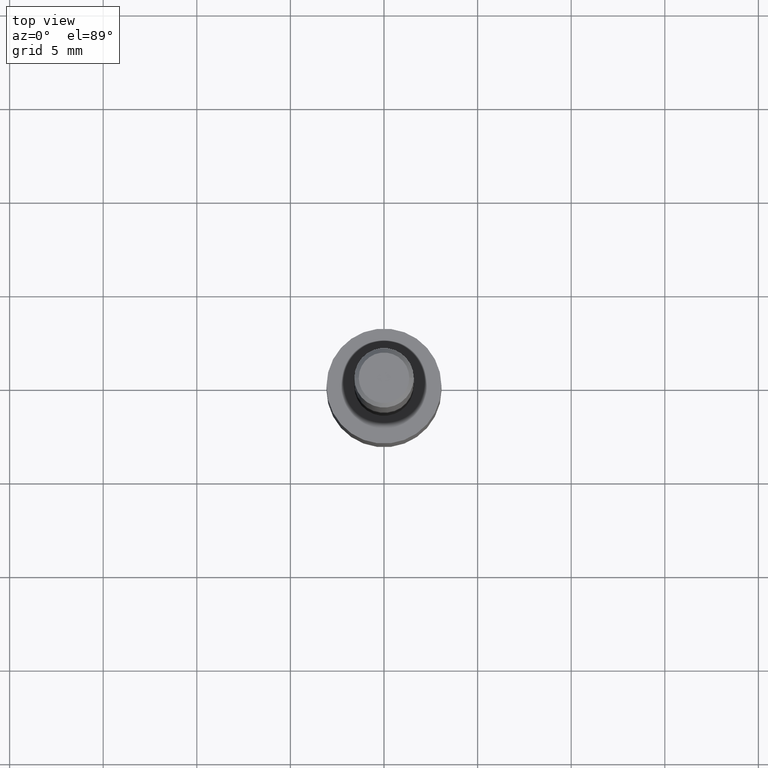
[diagram: clean part render]
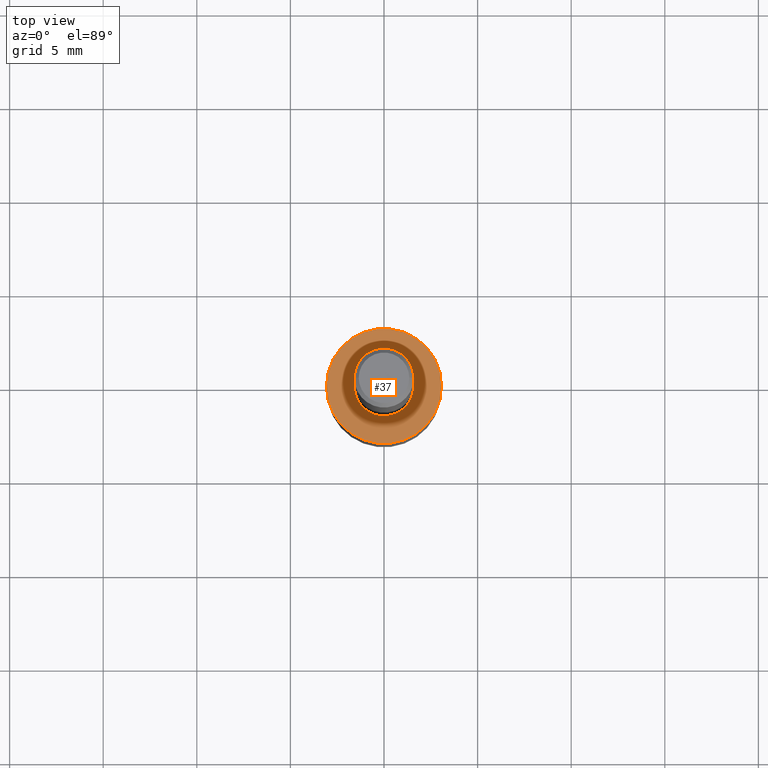
[diagram: same view with one face highlighted and labeled with its STEP entity id]
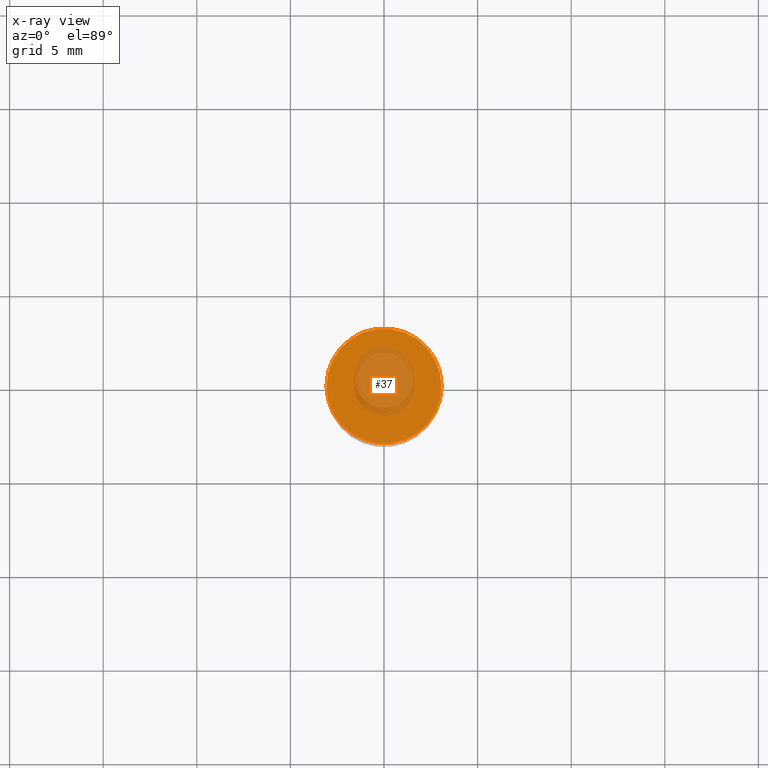
[diagram: x-ray of the same camera — body ghosted, the highlighted face saturated]
A machine part, top view. The second image highlights one B-rep face of the part: STEP entity #37.
The next image is the same camera in x-ray: the body ghosted, the highlighted face saturated — about 31% of this face is hidden behind the body in this view.
In plain terms, the highlighted planar face has unit normal (0, -0, -1).
Its self-contained STEP definition (entity closure, byte-faithful):
#4 = DIRECTION ( 'NONE',  ( 2.438088387897960049E-29, -3.491481338843145188E-15, -1.000000000000000000 ) ) ;
#29 = AXIS2_PLACEMENT_3D ( 'NONE', #264, #318, #161 ) ;
#35 = VERTEX_POINT ( 'NONE', #258 ) ;
#37 = ADVANCED_FACE ( 'NONE', ( #285 ), #48, .F. ) ;
#47 = AXIS2_PLACEMENT_3D ( 'NONE', #150, #253, #167 ) ;
#48 = PLANE ( 'NONE',  #211 ) ;
#69 = EDGE_LOOP ( 'NONE', ( #256, #219 ) ) ;
#98 = DIRECTION ( 'NONE',  ( -1.000000000000000000, 6.982962677686265922E-15, -4.876176775795935793E-29 ) ) ;
#150 = CARTESIAN_POINT ( 'NONE',  ( 2.445468806185136877E-29, -3.491481338843145977E-15, -1.000000000000000222 ) ) ;
#161 = DIRECTION ( 'NONE',  ( 1.000000000000000000, -6.982962677686268288E-15, 0.000000000000000000 ) ) ;
#167 = DIRECTION ( 'NONE',  ( 1.000000000000000000, -6.982962677686268288E-15, 0.000000000000000000 ) ) ;
#176 = VERTEX_POINT ( 'NONE', #269 ) ;
#207 = CARTESIAN_POINT ( 'NONE',  ( 3.233749491345040755E-29, -2.362618531543863890E-15, -1.000000000000000222 ) ) ;
#211 = AXIS2_PLACEMENT_3D ( 'NONE', #207, #4, #98 ) ;
#219 = ORIENTED_EDGE ( 'NONE', *, *, #252, .T. ) ;
#222 = CIRCLE ( 'NONE', #47, 0.1210000000000000103 ) ;
#252 = EDGE_CURVE ( 'NONE', #176, #35, #222, .T. ) ;
#253 = DIRECTION ( 'NONE',  ( -2.445468806185136597E-29, 3.491481338843145583E-15, 1.000000000000000000 ) ) ;
#256 = ORIENTED_EDGE ( 'NONE', *, *, #278, .T. ) ;
#258 = CARTESIAN_POINT ( 'NONE',  ( 0.1210000000000000103, -4.336419822843184470E-15, -1.000000000000000222 ) ) ;
#264 = CARTESIAN_POINT ( 'NONE',  ( 2.445468806185136877E-29, -3.491481338843145977E-15, -1.000000000000000222 ) ) ;
#269 = CARTESIAN_POINT ( 'NONE',  ( -0.1210000000000000103, -3.406094641844438096E-15, -1.000000000000000222 ) ) ;
#278 = EDGE_CURVE ( 'NONE', #35, #176, #283, .T. ) ;
#283 = CIRCLE ( 'NONE', #29, 0.1210000000000000103 ) ;
#285 = FACE_OUTER_BOUND ( 'NONE', #69, .T. ) ;
#318 = DIRECTION ( 'NONE',  ( -2.445468806185136597E-29, 3.491481338843145583E-15, 1.000000000000000000 ) ) ;